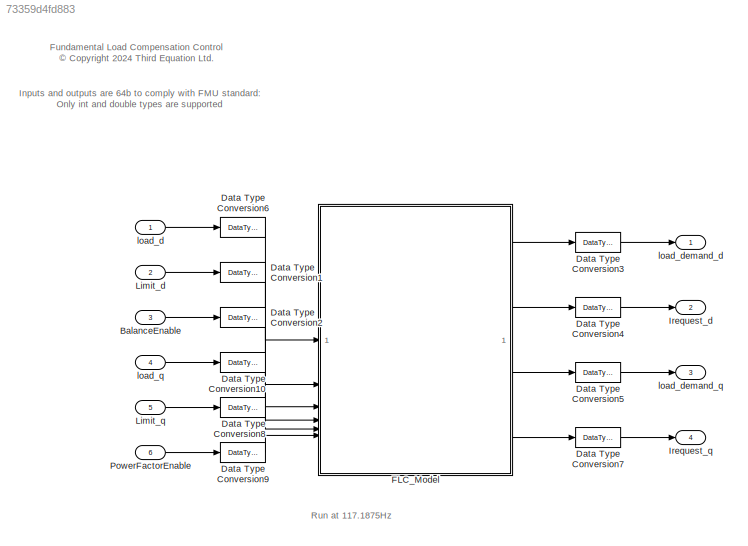
MODEL slx_73359d4fd883
KIND model
BLOCK [Inport] BalanceEnable
  OutDataTypeStr = int64
  Port = 3
  PortDimensions = 1
BLOCK [DataTypeConversion] Data Type Conversion1
  RndMeth = Floor
  SaturateOnIntegerOverflow = off
BLOCK [DataTypeConversion] Data Type Conversion10
  RndMeth = Floor
  SaturateOnIntegerOverflow = off
BLOCK [DataTypeConversion] Data Type Conversion2
  RndMeth = Floor
  SaturateOnIntegerOverflow = off
BLOCK [DataTypeConversion] Data Type Conversion3
  RndMeth = Floor
  SaturateOnIntegerOverflow = off
BLOCK [DataTypeConversion] Data Type Conversion4
  RndMeth = Floor
  SaturateOnIntegerOverflow = off
BLOCK [DataTypeConversion] Data Type Conversion5
  RndMeth = Floor
  SaturateOnIntegerOverflow = off
BLOCK [DataTypeConversion] Data Type Conversion6
  RndMeth = Floor
  SaturateOnIntegerOverflow = off
BLOCK [DataTypeConversion] Data Type Conversion7
  RndMeth = Floor
  SaturateOnIntegerOverflow = off
BLOCK [DataTypeConversion] Data Type Conversion8
  RndMeth = Floor
  SaturateOnIntegerOverflow = off
BLOCK [DataTypeConversion] Data Type Conversion9
  RndMeth = Floor
  SaturateOnIntegerOverflow = off
BLOCK [ModelReference] FLC_Model
  ModelNameDialog = LC_core_control.slx
  ModelReferenceVersion = 1.18
BLOCK [Outport] Irequest_d
  OutDataTypeStr = double
  Port = 2
  PortDimensions = 3
BLOCK [Outport] Irequest_q
  OutDataTypeStr = double
  Port = 4
  PortDimensions = 3
BLOCK [Inport] Limit_d
  OutDataTypeStr = double
  Port = 2
  PortDimensions = 3
BLOCK [Inport] Limit_q
  OutDataTypeStr = double
  Port = 5
  PortDimensions = 3
BLOCK [Inport] PowerFactorEnable
  OutDataTypeStr = int64
  Port = 6
  PortDimensions = 1
BLOCK [Inport] load_d
  OutDataTypeStr = double
  PortDimensions = 3
BLOCK [Outport] load_demand_d
  OutDataTypeStr = double
  PortDimensions = 3
BLOCK [Outport] load_demand_q
  OutDataTypeStr = double
  Port = 3
  PortDimensions = 3
BLOCK [Inport] load_q
  OutDataTypeStr = double
  Port = 4
  PortDimensions = 3
ANNOTATION (root): Fundamental Load Compensation Control <copyright redacted>
ANNOTATION (root): Inputs and outputs are 64b to comply with FMU standard: Only int and double types are supported
ANNOTATION (root): Run at 117.1875Hz
LINE BalanceEnable:1 -> Data Type Conversion2:1
LINE Data Type Conversion10:1 -> FLC_Model:4
LINE Data Type Conversion1:1 -> FLC_Model:2
LINE Data Type Conversion2:1 -> FLC_Model:3
LINE Data Type Conversion3:1 -> load_demand_d:1
LINE Data Type Conversion4:1 -> Irequest_d:1
LINE Data Type Conversion5:1 -> load_demand_q:1
LINE Data Type Conversion6:1 -> FLC_Model:1
LINE Data Type Conversion7:1 -> Irequest_q:1
LINE Data Type Conversion8:1 -> FLC_Model:5
LINE Data Type Conversion9:1 -> FLC_Model:6
LINE FLC_Model:1 -> Data Type Conversion3:1
LINE FLC_Model:2 -> Data Type Conversion4:1
LINE FLC_Model:3 -> Data Type Conversion5:1
LINE FLC_Model:4 -> Data Type Conversion7:1
LINE Limit_d:1 -> Data Type Conversion1:1
LINE Limit_q:1 -> Data Type Conversion8:1
LINE PowerFactorEnable:1 -> Data Type Conversion9:1
LINE load_d:1 -> Data Type Conversion6:1
LINE load_q:1 -> Data Type Conversion10:1
